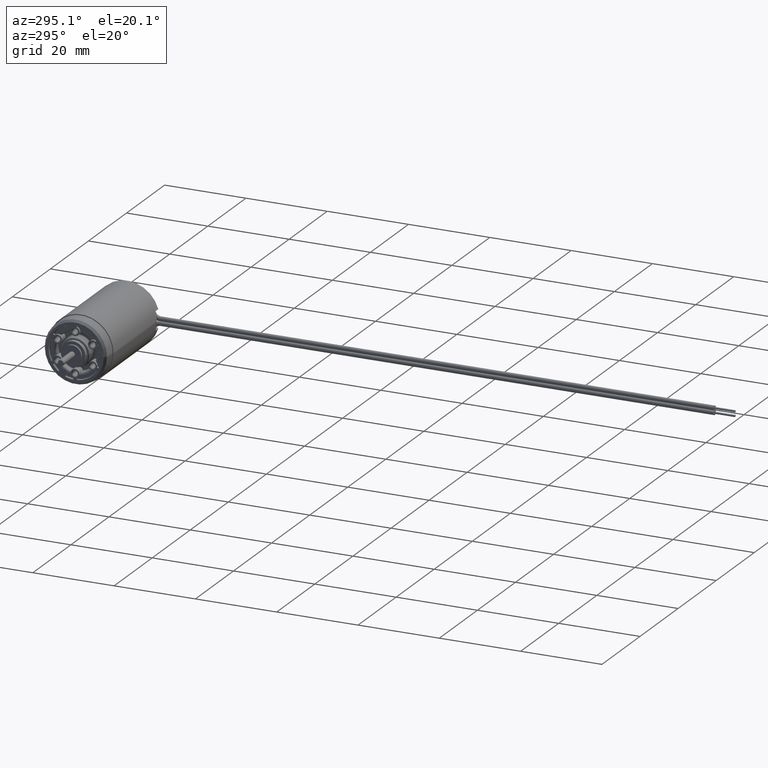
[diagram: clean part render]
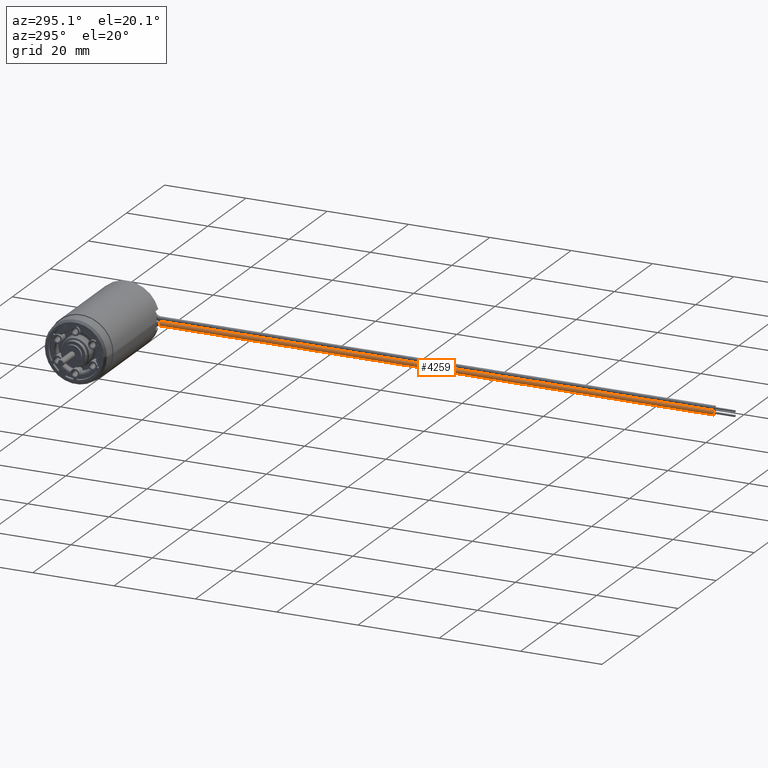
[diagram: same view with one face highlighted and labeled with its STEP entity id]
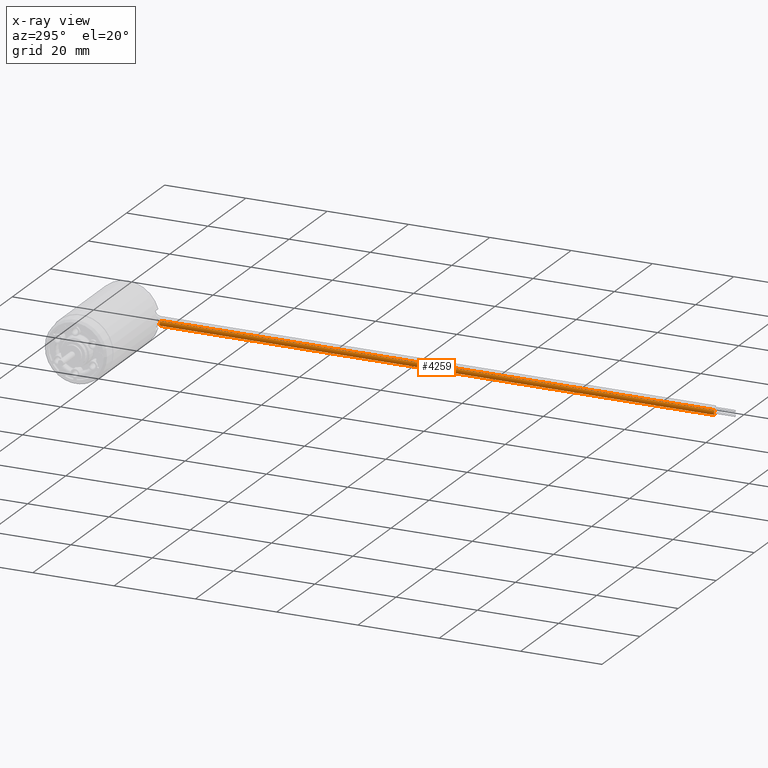
[diagram: x-ray of the same camera — body ghosted, the highlighted face saturated]
A machine part, auxiliary view. The second image highlights one B-rep face of the part: STEP entity #4259.
The next image is the same camera in x-ray: the body ghosted, the highlighted face saturated — about 0% of this face is hidden behind the body in this view.
In plain terms, the highlighted cylindrical surface (edge-blend (fillet) strip) has radius 0.55 mm, axis along (0, -1, 0).
Its self-contained STEP definition (entity closure, byte-faithful):
#709=CARTESIAN_POINT('',(3.405E1,-8.65E0,-5.6E-1));
#710=DIRECTION('',(0.E0,-1.E0,0.E0));
#711=DIRECTION('',(0.E0,0.E0,1.E0));
#712=AXIS2_PLACEMENT_3D('',#709,#710,#711);
#714=DIRECTION('',(0.E0,-1.E0,0.E0));
#715=VECTOR('',#714,1.3635E2);
#716=CARTESIAN_POINT('',(3.405E1,-8.65E0,-1.E-2));
#717=LINE('',#716,#715);
#723=DIRECTION('',(0.E0,-1.E0,0.E0));
#724=VECTOR('',#723,1.3635E2);
#725=CARTESIAN_POINT('',(3.405E1,-8.65E0,-1.11E0));
#726=LINE('',#725,#724);
#732=CARTESIAN_POINT('',(3.405E1,-1.45E2,-5.6E-1));
#733=DIRECTION('',(0.E0,-1.E0,0.E0));
#734=DIRECTION('',(0.E0,0.E0,1.E0));
#735=AXIS2_PLACEMENT_3D('',#732,#733,#734);
#3117=CARTESIAN_POINT('',(3.405E1,-8.65E0,-1.11E0));
#3118=CARTESIAN_POINT('',(3.405E1,-8.65E0,-1.E-2));
#3119=VERTEX_POINT('',#3117);
#3120=VERTEX_POINT('',#3118);
#3123=CARTESIAN_POINT('',(3.405E1,-1.45E2,-1.11E0));
#3124=CARTESIAN_POINT('',(3.405E1,-1.45E2,-1.000000000001E-2));
#3125=VERTEX_POINT('',#3123);
#3126=VERTEX_POINT('',#3124);
#4245=CARTESIAN_POINT('',(3.405E1,-8.65E0,-5.6E-1));
#4246=DIRECTION('',(0.E0,-1.E0,0.E0));
#4247=DIRECTION('',(0.E0,0.E0,-1.E0));
#4248=AXIS2_PLACEMENT_3D('',#4245,#4246,#4247);
#4249=CYLINDRICAL_SURFACE('',#4248,5.5E-1);
#4250=ORIENTED_EDGE('',*,*,#4237,.F.);
#4252=ORIENTED_EDGE('',*,*,#4251,.T.);
#4254=ORIENTED_EDGE('',*,*,#4253,.T.);
#4256=ORIENTED_EDGE('',*,*,#4255,.F.);
#4257=EDGE_LOOP('',(#4250,#4252,#4254,#4256));
#4258=FACE_OUTER_BOUND('',#4257,.F.);
#4259=ADVANCED_FACE('',(#4258),#4249,.T.);
#713=CIRCLE('',#712,5.5E-1);
#736=CIRCLE('',#735,5.5E-1);
#4237=EDGE_CURVE('',#3120,#3119,#713,.T.);
#4251=EDGE_CURVE('',#3120,#3126,#717,.T.);
#4253=EDGE_CURVE('',#3126,#3125,#736,.T.);
#4255=EDGE_CURVE('',#3119,#3125,#726,.T.);